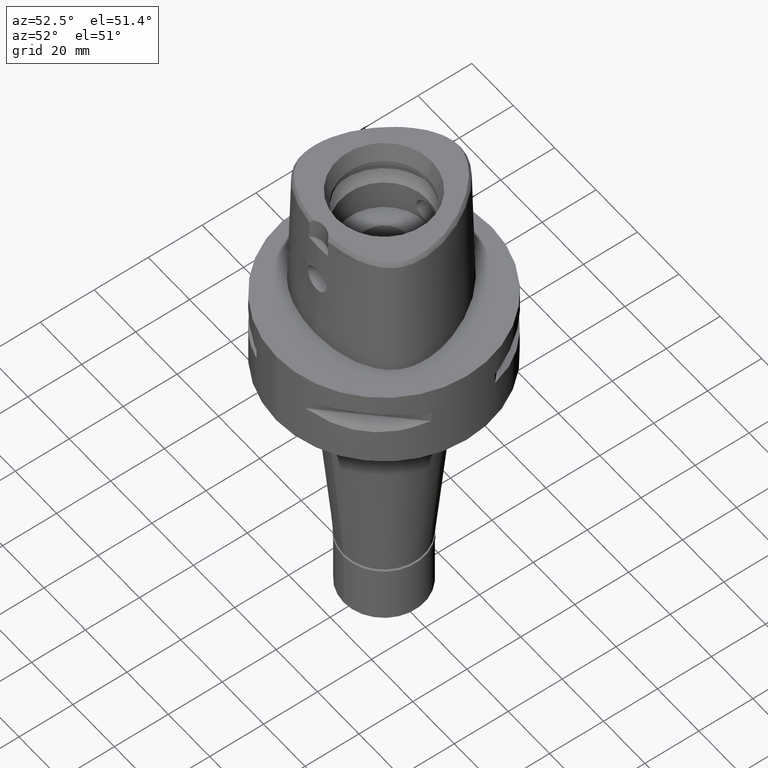
[diagram: clean part render]
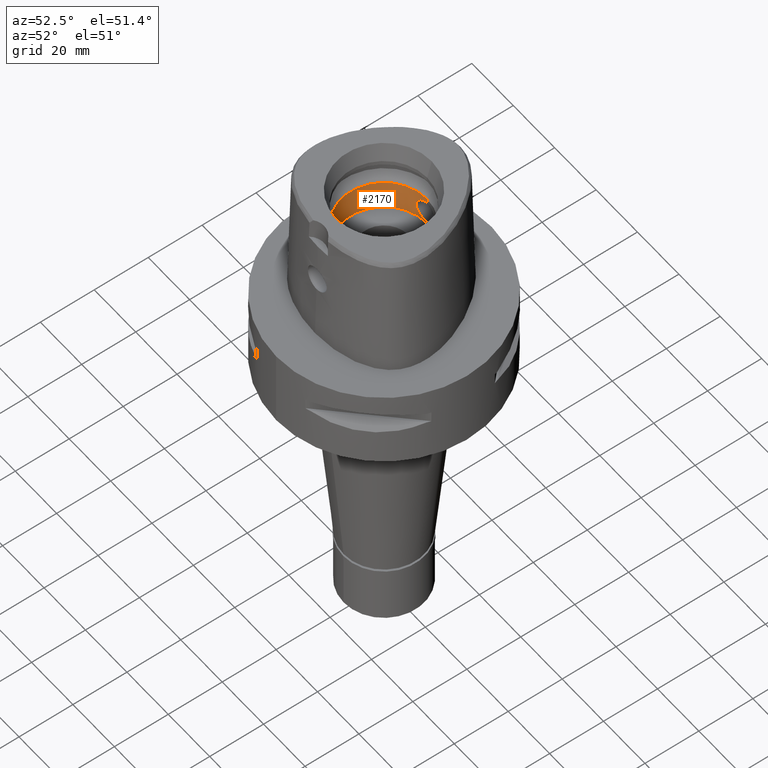
[diagram: same view with one face highlighted and labeled with its STEP entity id]
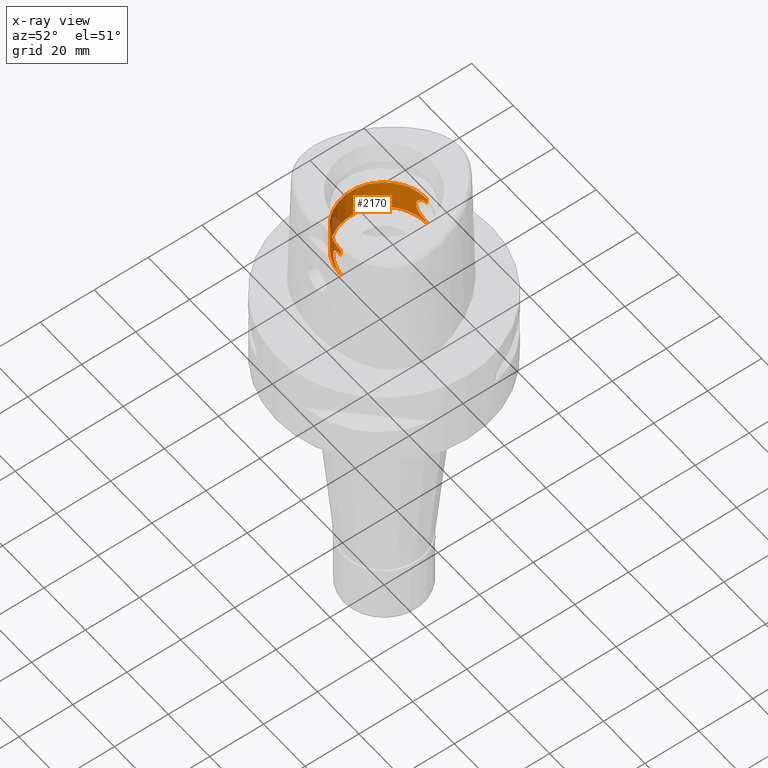
[diagram: x-ray of the same camera — body ghosted, the highlighted face saturated]
A machine part, auxiliary view. The second image highlights one B-rep face of the part: STEP entity #2170.
The next image is the same camera in x-ray: the body ghosted, the highlighted face saturated — about 5% of this face is hidden behind the body in this view.
In plain terms, the highlighted cylindrical surface (partial cylindrical patch) has radius 16 mm, axis along (0, 0, -1).
Its self-contained STEP definition (entity closure, byte-faithful):
#11 = CARTESIAN_POINT ( 'NONE',  ( -3.770759980238470810, -15.54928484612994488, 22.45365534022256071 ) ) ;
#41 = CARTESIAN_POINT ( 'NONE',  ( -3.164593148521985366, -15.68391194751405848, 21.73075049432587136 ) ) ;
#64 = CARTESIAN_POINT ( 'NONE',  ( -2.857373536110557222, -15.74233262073191497, 21.45808145749665385 ) ) ;
#76 = CARTESIAN_POINT ( 'NONE',  ( 0.0000000000000000000, -16.00000000000000000, 20.00000000000000000 ) ) ;
#116 = CARTESIAN_POINT ( 'NONE',  ( -2.615052671175415178, -15.78485159899936008, 28.72363278275448550 ) ) ;
#130 = CARTESIAN_POINT ( 'NONE',  ( -1.590909606422051592, 15.92067517995416104, 29.26310650829697835 ) ) ;
#139 = CARTESIAN_POINT ( 'NONE',  ( 0.0000000000000000000, -16.00000000000000000, 29.55000000000000071 ) ) ;
#161 = DIRECTION ( 'NONE',  ( 0.0000000000000000000, 0.0000000000000000000, -1.000000000000000000 ) ) ;
#181 = CARTESIAN_POINT ( 'NONE',  ( -1.140760103993205377, 15.95958583846035239, 29.40724264926300435 ) ) ;
#211 = CARTESIAN_POINT ( 'NONE',  ( -4.237594150193246811, 15.42874913209464438, 23.34290828511583982 ) ) ;
#232 = CARTESIAN_POINT ( 'NONE',  ( -4.442109092198020193, 15.37148696654308822, 24.00412671213637594 ) ) ;
#260 = CARTESIAN_POINT ( 'NONE',  ( -4.411048559110542833, 15.38060253977330483, 26.15501743212412578 ) ) ;
#292 = CARTESIAN_POINT ( 'NONE',  ( -4.550014972005905989, 15.33941184350851117, 25.13790463108722761 ) ) ;
#320 = CARTESIAN_POINT ( 'NONE',  ( -3.999411189207473072, 15.49220518450356820, 22.82912099227587177 ) ) ;
#363 = CARTESIAN_POINT ( 'NONE',  ( -3.803028819097503455, -15.54144467798745843, 27.49789858710326484 ) ) ;
#388 = CARTESIAN_POINT ( 'NONE',  ( -4.550016605372620759, -15.33941127124155201, 24.86215099084507685 ) ) ;
#395 = CARTESIAN_POINT ( 'NONE',  ( -2.546616965873742089, 15.79604194540690898, 21.22942273861440654 ) ) ;
#409 = CARTESIAN_POINT ( 'NONE',  ( -3.674612787969601779, -15.57277381835500130, 27.68738267096848560 ) ) ;
#416 = CARTESIAN_POINT ( 'NONE',  ( 0.0000000000000000000, -16.00000000000000000, 31.50000000000000000 ) ) ;
#430 = CARTESIAN_POINT ( 'NONE',  ( -3.608924392689227378, -15.58793867772004837, 22.22802856644076996 ) ) ;
#458 = CARTESIAN_POINT ( 'NONE',  ( -3.181681398921526238, -15.68046225010586525, 21.74737865687080784 ) ) ;
#481 = CARTESIAN_POINT ( 'NONE',  ( -2.399876071806192002, -15.81960993098903145, 28.86909068666054168 ) ) ;
#554 = CARTESIAN_POINT ( 'NONE',  ( -2.064166413537847244, -15.86630894761454158, 29.05554201722887342 ) ) ;
#600 = CARTESIAN_POINT ( 'NONE',  ( -3.674613688661279021, 15.57277332895812272, 22.31261877386840808 ) ) ;
#615 = VERTEX_POINT ( 'NONE', #5034 ) ;
#628 = CARTESIAN_POINT ( 'NONE',  ( -3.468482967250269056, 15.62005502598315942, 27.94868988707264634 ) ) ;
#650 = CARTESIAN_POINT ( 'NONE',  ( -3.164567237336389116, 15.68391714219621136, 28.26927458741651122 ) ) ;
#677 = CARTESIAN_POINT ( 'NONE',  ( -4.199165905794377096, 15.43928770095531178, 26.75202829721409259 ) ) ;
#707 = CARTESIAN_POINT ( 'NONE',  ( -4.219636267341808633, 15.43366082681107621, 23.29786489254982129 ) ) ;
#709 = EDGE_CURVE ( 'NONE', #615, #2057, #4961, .T. ) ;
#771 = CARTESIAN_POINT ( 'NONE',  ( -4.308073645056373024, -15.40933917230561789, 26.46741814490357214 ) ) ;
#783 = CARTESIAN_POINT ( 'NONE',  ( -2.399895137346605090, 15.81960703099427867, 21.13092108888233511 ) ) ;
#798 = CARTESIAN_POINT ( 'NONE',  ( -3.772427912172387376, -15.54888009509346780, 22.45612611348230558 ) ) ;
#820 = CARTESIAN_POINT ( 'NONE',  ( -3.947477866793213330, -15.50564519408261432, 22.73221844233430033 ) ) ;
#843 = CARTESIAN_POINT ( 'NONE',  ( -4.226851849642681458, -15.43168791976794019, 26.68413704551003818 ) ) ;
#871 = CARTESIAN_POINT ( 'NONE',  ( -3.873233737772334706, -15.52414049617831360, 27.38816348663961620 ) ) ;
#886 = CARTESIAN_POINT ( 'NONE',  ( -2.523266824950815224, 15.79903481094641471, 28.78917115941111149 ) ) ;
#919 = CARTESIAN_POINT ( 'NONE',  ( -1.770103668368385508, -15.90163906099604318, 29.19157592990286432 ) ) ;
#938 = CARTESIAN_POINT ( 'NONE',  ( -2.655275166708880530, 15.77765331378871672, 28.69879656004965440 ) ) ;
#961 = DIRECTION ( 'NONE',  ( 0.0000000000000000000, 1.000000000000000000, 0.0000000000000000000 ) ) ;
#971 = LINE ( 'NONE', #2945, #5091 ) ;
#987 = CARTESIAN_POINT ( 'NONE',  ( -4.343082513322389815, 15.39956137087163768, 23.64137842677810042 ) ) ;
#1017 = CARTESIAN_POINT ( 'NONE',  ( -3.303417263783335667, 15.65543377176718742, 21.86954111154406633 ) ) ;
#1037 = CARTESIAN_POINT ( 'NONE',  ( -1.653600938212678617, -15.91425128924059429, 20.76104373296122318 ) ) ;
#1046 = CARTESIAN_POINT ( 'NONE',  ( -3.947487563896062923, 15.50564270218542084, 27.26776463166709163 ) ) ;
#1070 = CARTESIAN_POINT ( 'NONE',  ( -4.132994643244532362, 15.45714541230709571, 26.90319602464457205 ) ) ;
#1074 = ORIENTED_EDGE ( 'NONE', *, *, #4372, .T. ) ;
#1094 = ORIENTED_EDGE ( 'NONE', *, *, #709, .F. ) ;
#1096 = CARTESIAN_POINT ( 'NONE',  ( -3.768407434987185223, 15.54985593897530549, 27.54982731639834270 ) ) ;
#1122 = VECTOR ( 'NONE', #2552, 1000.000000000000000 ) ;
#1156 = VERTEX_POINT ( 'NONE', #4217 ) ;
#1157 = CARTESIAN_POINT ( 'NONE',  ( -2.264376687355035944, 15.83946225968417920, 21.05058049220882310 ) ) ;
#1171 = CARTESIAN_POINT ( 'NONE',  ( -3.866436344083077792, -15.52606591073303299, 22.59570682629106386 ) ) ;
#1181 = CARTESIAN_POINT ( 'NONE',  ( -1.159189432197057501, 15.96838986749791722, 20.55577659394891654 ) ) ;
#1197 = CARTESIAN_POINT ( 'NONE',  ( -2.925392688698539079, -15.73002027455387264, 21.51391389585731773 ) ) ;
#1206 = CARTESIAN_POINT ( 'NONE',  ( -1.747105877979794109, 15.90418178585306030, 20.79878388586040572 ) ) ;
#1222 = CARTESIAN_POINT ( 'NONE',  ( -4.411053383424297536, -15.38060143694088389, 23.84499821223618454 ) ) ;
#1228 = CARTESIAN_POINT ( 'NONE',  ( -0.5625435954014351703, 16.00000000000000000, 20.44999999999999929 ) ) ;
#1243 = CARTESIAN_POINT ( 'NONE',  ( -4.155129910881949939, -15.45121309823671041, 23.14539743473875077 ) ) ;
#1269 = CARTESIAN_POINT ( 'NONE',  ( -4.219630551734469215, -15.43366195176614752, 26.70214927481584510 ) ) ;
#1391 = EDGE_CURVE ( 'NONE', #3978, #1527, #2410, .T. ) ;
#1405 = CARTESIAN_POINT ( 'NONE',  ( -3.536513010712533323, 15.60452899826052331, 22.13623471127148434 ) ) ;
#1431 = CARTESIAN_POINT ( 'NONE',  ( -3.484925694549966924, 15.61614551242483984, 22.07330582761800031 ) ) ;
#1451 = CARTESIAN_POINT ( 'NONE',  ( -1.912209224076176994, -15.88647844645581308, 20.86590070626024485 ) ) ;
#1461 = CARTESIAN_POINT ( 'NONE',  ( -4.549969975828982882, 15.33940606239298887, 24.72271143177623642 ) ) ;
#1483 = CARTESIAN_POINT ( 'NONE',  ( -3.866446053865151278, 15.52606363698486547, 27.40427778759385902 ) ) ;
#1487 = VERTEX_POINT ( 'NONE', #416 ) ;
#1512 = CARTESIAN_POINT ( 'NONE',  ( -4.196352190463255916, 15.44005272207899893, 26.75875030209602201 ) ) ;
#1527 = VERTEX_POINT ( 'NONE', #4370 ) ;
#1534 = CARTESIAN_POINT ( 'NONE',  ( -0.9962093679006770452, -15.96920684558385339, 20.55797680755367551 ) ) ;
#1561 = CARTESIAN_POINT ( 'NONE',  ( -3.903695300135948898, -15.51651288045087718, 27.33777033983094640 ) ) ;
#1569 = CARTESIAN_POINT ( 'NONE',  ( -1.850773136603759417, 15.89251031774791656, 20.84315916015391323 ) ) ;
#1583 = CARTESIAN_POINT ( 'NONE',  ( -4.237588040307278092, -15.42875037416565220, 26.65710732717910503 ) ) ;
#1604 = CARTESIAN_POINT ( 'NONE',  ( -3.484919793654390752, -15.61614698945674995, 27.92670124698731016 ) ) ;
#1627 = CARTESIAN_POINT ( 'NONE',  ( -4.189652323895267649, -15.44187290045058880, 23.22534855782602747 ) ) ;
#1651 = CARTESIAN_POINT ( 'NONE',  ( -3.762790664216165926, -15.55121841547053663, 22.44188264554308176 ) ) ;
#1667 = CARTESIAN_POINT ( 'NONE',  ( -1.653564068228525974, 15.91425522200126252, 29.23897064560675929 ) ) ;
#1676 = CARTESIAN_POINT ( 'NONE',  ( -2.541134032803606502, -15.79692595976012193, 28.77427459015486377 ) ) ;
#1712 = ORIENTED_EDGE ( 'NONE', *, *, #3833, .T. ) ;
#1714 = CARTESIAN_POINT ( 'NONE',  ( -1.357181538775629193, 15.94226548351479167, 29.34352548247307269 ) ) ;
#1760 = CARTESIAN_POINT ( 'NONE',  ( -1.707171946568374787, 15.90858513618628400, 29.21759257412913868 ) ) ;
#1789 = CARTESIAN_POINT ( 'NONE',  ( -3.903691630146975733, 15.51651370494703031, 22.66222352453099376 ) ) ;
#1796 = CARTESIAN_POINT ( 'NONE',  ( 0.0000000000000000000, 16.00000000000000000, 29.55000000000000071 ) ) ;
#1805 = CARTESIAN_POINT ( 'NONE',  ( -1.140784955815653756, -15.95958398482881080, 20.59276365346901372 ) ) ;
#1814 = CARTESIAN_POINT ( 'NONE',  ( -2.785150339257688401, 15.75567514882851583, 21.40122932039081149 ) ) ;
#1832 = CARTESIAN_POINT ( 'NONE',  ( -1.698281069872325855, -15.90953571157761814, 20.77881952702060531 ) ) ;
#1841 = CARTESIAN_POINT ( 'NONE',  ( -4.226857725782997122, 15.43168674739930601, 23.31587770079802624 ) ) ;
#1866 = CARTESIAN_POINT ( 'NONE',  ( -3.138927033459067761, 15.68906635997180032, 28.29402792154699853 ) ) ;
#1893 = CARTESIAN_POINT ( 'NONE',  ( -3.962675516144175791, 15.50163073709197370, 22.76265078186375135 ) ) ;
#1923 = CARTESIAN_POINT ( 'NONE',  ( 0.0000000000000000000, -16.00000000000000000, 29.55000000000000071 ) ) ;
#1944 = CARTESIAN_POINT ( 'NONE',  ( -4.343074729150051994, -15.39956319107818672, 26.35864634386871685 ) ) ;
#1969 = CARTESIAN_POINT ( 'NONE',  ( -3.189318713566251073, -15.67891343094984435, 21.75486172334241530 ) ) ;
#1975 = CARTESIAN_POINT ( 'NONE',  ( -1.997963240203906921, 15.87476478322290241, 20.91149385244035841 ) ) ;
#1990 = CARTESIAN_POINT ( 'NONE',  ( -3.536508346899525979, -15.60453024766170316, 27.86377109817507147 ) ) ;
#1999 = CARTESIAN_POINT ( 'NONE',  ( -1.770123691009649392, 15.90163684328704541, 20.80843252579381897 ) ) ;
#2014 = CARTESIAN_POINT ( 'NONE',  ( -3.649466559780250918, -15.57841005552143798, 22.28201108966871757 ) ) ;
#2042 = CARTESIAN_POINT ( 'NONE',  ( -4.442101176662089479, -15.37148904683071216, 25.99590811214460473 ) ) ;
#2057 = VERTEX_POINT ( 'NONE', #1923 ) ;
#2063 = CARTESIAN_POINT ( 'NONE',  ( -2.546597221813843515, -15.79604512245208525, 28.77059059623441328 ) ) ;
#2078 = CARTESIAN_POINT ( 'NONE',  ( -3.027770850642460765, 15.71074619974455544, 28.39663927633062457 ) ) ;
#2087 = CARTESIAN_POINT ( 'NONE',  ( -2.962123274058686917, -15.72368784967138566, 28.45704749765089403 ) ) ;
#2106 = CARTESIAN_POINT ( 'NONE',  ( -0.9961878768771389447, 15.96920825787455023, 29.44202789831593847 ) ) ;
#2113 = CARTESIAN_POINT ( 'NONE',  ( 0.0000000000000000000, 0.0000000000000000000, 50.39999999999999858 ) ) ;
#2160 = DIRECTION ( 'NONE',  ( 0.0000000000000000000, -1.000000000000000000, 0.0000000000000000000 ) ) ;
#2167 = CARTESIAN_POINT ( 'NONE',  ( -3.303408539596639937, -15.65543566466796577, 28.13046817108088149 ) ) ;
#2170 = ADVANCED_FACE ( 'NONE', ( #4163 ), #2970, .F. ) ;
#2187 = CARTESIAN_POINT ( 'NONE',  ( -3.189292576270065016, 15.67891872885192761, 28.24516396761776704 ) ) ;
#2197 = DIRECTION ( 'NONE',  ( 0.0000000000000000000, 0.0000000000000000000, 1.000000000000000000 ) ) ;
#2211 = CARTESIAN_POINT ( 'NONE',  ( -2.962140787422690824, 15.72368462031088399, 21.54296756997928597 ) ) ;
#2221 = ORIENTED_EDGE ( 'NONE', *, *, #2242, .F. ) ;
#2232 = CARTESIAN_POINT ( 'NONE',  ( -3.726288901112015939, 15.56005692804316354, 27.61121130299216375 ) ) ;
#2242 = EDGE_CURVE ( 'NONE', #2057, #1487, #971, .T. ) ;
#2259 = CARTESIAN_POINT ( 'NONE',  ( -4.308081053701197760, 15.40933751179871791, 23.53260340130821859 ) ) ;
#2291 = CARTESIAN_POINT ( 'NONE',  ( -4.215499682017137317, 15.43479048220081751, 23.28765271728413566 ) ) ;
#2361 = CARTESIAN_POINT ( 'NONE',  ( -4.261970450590708559, -15.42206061785877580, 26.59396347173989383 ) ) ;
#2371 = CARTESIAN_POINT ( 'NONE',  ( 0.0000000000000000000, 16.00000000000000000, 20.44999999999999929 ) ) ;
#2385 = CARTESIAN_POINT ( 'NONE',  ( -3.835940430641727072, -15.53336519271273453, 27.44719556071899902 ) ) ;
#2390 = VERTEX_POINT ( 'NONE', #3330 ) ;
#2405 = CARTESIAN_POINT ( 'NONE',  ( -3.027798496737373224, -15.71074096794787955, 21.60338537065186415 ) ) ;
#2410 = B_SPLINE_CURVE_WITH_KNOTS ( 'NONE', 3,
 ( #4452, #3714, #3739, #2106, #181, #1714, #3692, #130, #1667, #3253, #4840, #1760, #4943, #2865, #3303, #886, #938, #2476, #4053, #2078, #4231, #1866, #650, #3816, #2187, #2624, #628, #5043, #3768, #3457, #2232, #5071, #3846, #1096, #4260, #2986, #3014, #1483, #1046, #3066, #4966, #1070, #4207, #5020, #2648, #1512, #677, #4610, #260, #4989, #2678, #4154, #292, #1461, #3096, #232, #3790, #987, #2259, #4660, #211, #1841, #707, #2291, #3432, #3873, #320, #1893, #1789, #3404, #4183, #3039, #3481, #3378, #2573, #4633, #600, #1405, #1431, #4580, #1017, #2600, #2211, #1814, #4285, #2706, #4718, #3153, #3587, #395, #3511, #3127, #783, #1157, #5107, #1975, #4311, #1569, #4744, #1999, #3930, #1206, #1181, #1228, #2371 ),
 .UNSPECIFIED., .F., .F.,
 ( 4, 2, 2, 1, 1, 1, 1, 2, 2, 2, 2, 2, 1, 1, 2, 2, 2, 2, 1, 1, 1, 1, 2, 2, 2, 2, 1, 1, 2, 2, 2, 2, 2, 2, 2, 1, 1, 1, 2, 2, 2, 2, 1, 1, 1, 2, 2, 2, 2, 2, 2, 2, 1, 1, 1, 2, 2, 2, 2, 1, 1, 2, 2, 4 ),
 ( 0.0000000000000000000, 0.06249999999996705413, 0.09374999999995060895, 0.1093749999999422962, 0.1171874999999382438, 0.1210937499999362593, 0.1230468749999353989, 0.1240234374999348438, 0.1249999999999342748, 0.1874999999998833988, 0.2187499999998581690, 0.2343749999998457345, 0.2421874999998394618, 0.2460937499998365752, 0.2480468749998349098, 0.2499999999998332445, 0.2812499999998110956, 0.2968749999997997713, 0.3046874999997941091, 0.3085937499997913336, 0.3105468749997898903, 0.3115234374997891686, 0.3120117187497892242, 0.3124999999997893352, 0.3437499999997984945, 0.3593749999998027689, 0.3671874999998046007, 0.3710937499998054889, 0.3730468749998062661, 0.3749999999998069877, 0.4374999999998204214, 0.4687499999998268607, 0.4999999999998332445, 0.5624999999998460121, 0.5937499999998527844, 0.6093749999998557820, 0.6171874999998573363, 0.6210937499998576694, 0.6230468749998582245, 0.6249999999998586686, 0.6562499999998689937, 0.6718749999998741007, 0.6796874999998766542, 0.6835937499998778755, 0.6855468749998785416, 0.6865234374998790967, 0.6874999999998797628, 0.7187499999998928635, 0.7343749999998995248, 0.7499999999999060751, 0.7812499999999187317, 0.7968749999999250599, 0.8046874999999279465, 0.8085937499999295008, 0.8105468749999302780, 0.8115234374999307221, 0.8124999999999311662, 0.8437499999999450440, 0.8593749999999519273, 0.8671874999999553690, 0.8710937499999568123, 0.8730468749999575895, 0.8749999999999582556, 1.000000000000000000 ),
 .UNSPECIFIED. ) ;
#2434 = CARTESIAN_POINT ( 'NONE',  ( -3.999413278196044530, -15.49220456275814328, 27.17087509493712005 ) ) ;
#2450 = LINE ( 'NONE', #76, #2527 ) ;
#2460 = CARTESIAN_POINT ( 'NONE',  ( -2.264357884891243788, -15.83946496217991751, 28.94943027717637207 ) ) ;
#2476 = CARTESIAN_POINT ( 'NONE',  ( -2.857343863915064119, 15.74233786930796875, 28.54194248883869989 ) ) ;
#2485 = CARTESIAN_POINT ( 'NONE',  ( -3.094062483645028561, -15.69862711312405068, 28.34195050020527518 ) ) ;
#2519 = VECTOR ( 'NONE', #3657, 1000.000000000000000 ) ;
#2527 = VECTOR ( 'NONE', #4423, 1000.000000000000000 ) ;
#2552 = DIRECTION ( 'NONE',  ( 0.0000000000000000000, 0.0000000000000000000, 1.000000000000000000 ) ) ;
#2573 = CARTESIAN_POINT ( 'NONE',  ( -3.799104005360694369, 15.54240417563912935, 22.49613942991346605 ) ) ;
#2600 = CARTESIAN_POINT ( 'NONE',  ( -3.094077004170888046, 15.69862427604555144, 21.65806322977843479 ) ) ;
#2611 = CIRCLE ( 'NONE', #4181, 16.00000000000000000 ) ;
#2617 = CARTESIAN_POINT ( 'NONE',  ( -1.684884112672153433, -15.91096222550595840, 20.77343785575047619 ) ) ;
#2624 = CARTESIAN_POINT ( 'NONE',  ( -3.349826277480681291, 15.64617109901425174, 28.08647051457720067 ) ) ;
#2648 = CARTESIAN_POINT ( 'NONE',  ( -4.189656940208129399, 15.44187122868366657, 26.77464054244640579 ) ) ;
#2678 = CARTESIAN_POINT ( 'NONE',  ( -4.516441512071670772, 15.34971197744748928, 25.57024841028623641 ) ) ;
#2697 = CARTESIAN_POINT ( 'NONE',  ( -0.2782055712927915536, -16.00000000000000000, 20.45000000000000284 ) ) ;
#2706 = CARTESIAN_POINT ( 'NONE',  ( -2.652250871545867472, 15.77860059733965059, 21.30282779764083756 ) ) ;
#2714 = ORIENTED_EDGE ( 'NONE', *, *, #3110, .T. ) ;
#2721 = CARTESIAN_POINT ( 'NONE',  ( -1.357211456808673944, -15.94226283546972667, 20.65648383289448375 ) ) ;
#2746 = CARTESIAN_POINT ( 'NONE',  ( -3.751168735370768115, -15.55403637237609615, 22.42483334714804144 ) ) ;
#2773 = CARTESIAN_POINT ( 'NONE',  ( -3.468490070139379267, -15.62005320470794345, 22.05131889892997066 ) ) ;
#2797 = CARTESIAN_POINT ( 'NONE',  ( -3.772324227314893808, -15.54890525390715261, 22.45597329437009293 ) ) ;
#2820 = CARTESIAN_POINT ( 'NONE',  ( -4.524610823710142782, -15.34742665473420153, 25.56283231971658410 ) ) ;
#2846 = CARTESIAN_POINT ( 'NONE',  ( -4.215493976533938536, -15.43479160256175398, 26.71236132617784165 ) ) ;
#2862 = CARTESIAN_POINT ( 'NONE',  ( 0.0000000000000000000, 0.0000000000000000000, 31.50000000000000000 ) ) ;
#2865 = CARTESIAN_POINT ( 'NONE',  ( -1.912171411920562836, 15.88648310426963839, 29.13411677183932724 ) ) ;
#2893 = CARTESIAN_POINT ( 'NONE',  ( -1.997944188277485766, -15.87476718253413210, 29.08851545926303217 ) ) ;
#2926 = EDGE_LOOP ( 'NONE', ( #4954, #3860, #1712, #4651, #1074, #2714, #2221, #1094 ) ) ;
#2945 = CARTESIAN_POINT ( 'NONE',  ( 0.0000000000000000000, -16.00000000000000000, 29.55000000000000071 ) ) ;
#2947 = CARTESIAN_POINT ( 'NONE',  ( -3.369130814347397695, -15.64144300376580787, 28.05928156813589069 ) ) ;
#2970 = CYLINDRICAL_SURFACE ( 'NONE', #4834, 16.00000000000000000 ) ;
#2972 = CARTESIAN_POINT ( 'NONE',  ( -2.652230358308052871, -15.77860401608883301, 28.69718691725640980 ) ) ;
#2986 = CARTESIAN_POINT ( 'NONE',  ( -3.772332481373883883, 15.54890347445157950, 27.54401446636360262 ) ) ;
#3014 = CARTESIAN_POINT ( 'NONE',  ( -3.772436195961556660, 15.54887830827934181, 27.54386160211427992 ) ) ;
#3030 = CARTESIAN_POINT ( 'NONE',  ( -2.143403219931632187, -15.85668795787808349, 20.97543837626849239 ) ) ;
#3039 = CARTESIAN_POINT ( 'NONE',  ( -3.816843789853405333, 15.53805983925459522, 22.52323163771983516 ) ) ;
#3066 = CARTESIAN_POINT ( 'NONE',  ( -4.053986218455703394, 15.47807541231430939, 27.06722624874729632 ) ) ;
#3096 = CARTESIAN_POINT ( 'NONE',  ( -4.524616866566812945, 15.34742484315163402, 24.43721284604779242 ) ) ;
#3110 = EDGE_CURVE ( 'NONE', #2390, #1487, #5100, .T. ) ;
#3118 = CARTESIAN_POINT ( 'NONE',  ( -1.465313310844599481, -15.93288054623356231, 20.69122707573505338 ) ) ;
#3127 = CARTESIAN_POINT ( 'NONE',  ( -2.539987065377296904, 15.79711102339729756, 21.22495141109085637 ) ) ;
#3144 = CARTESIAN_POINT ( 'NONE',  ( -3.799108428659918157, -15.54240332098918032, 27.50385385879915390 ) ) ;
#3153 = CARTESIAN_POINT ( 'NONE',  ( -2.574461866630644913, 15.79152464315161986, 21.24833724970529403 ) ) ;
#3168 = CARTESIAN_POINT ( 'NONE',  ( -3.349840948172829513, -15.64616776988927249, 21.91354633876354185 ) ) ;
#3193 = CARTESIAN_POINT ( 'NONE',  ( -3.138953278057600382, -15.68906115652199773, 21.70599708910013348 ) ) ;
#3214 = CARTESIAN_POINT ( 'NONE',  ( -4.495814062753821005, -15.35588899406192454, 24.28418844418792588 ) ) ;
#3238 = CARTESIAN_POINT ( 'NONE',  ( -4.161424560288987884, -15.44954562372141105, 26.84476683902795457 ) ) ;
#3253 = CARTESIAN_POINT ( 'NONE',  ( -1.684846511908498545, 15.91096630911555110, 29.22657713225770948 ) ) ;
#3303 = CARTESIAN_POINT ( 'NONE',  ( -2.143366757437013881, 15.85669290493108008, 29.02458111161339716 ) ) ;
#3310 = CARTESIAN_POINT ( 'NONE',  ( -1.850753553290755526, -15.89251259051184562, 29.15684956051372012 ) ) ;
#3330 = CARTESIAN_POINT ( 'NONE',  ( 0.0000000000000000000, 16.00000000000000000, 31.50000000000000000 ) ) ;
#3332 = DIRECTION ( 'NONE',  ( 0.0000000000000000000, -1.000000000000000000, 0.0000000000000000000 ) ) ;
#3366 = CARTESIAN_POINT ( 'NONE',  ( -2.539967469034787761, -15.79711416914411970, 28.77506177390170805 ) ) ;
#3378 = CARTESIAN_POINT ( 'NONE',  ( -3.803024487767081130, 15.54144551466437463, 22.50209481850186322 ) ) ;
#3404 = CARTESIAN_POINT ( 'NONE',  ( -3.873229736101929888, 15.52414134861769313, 22.61183001807234660 ) ) ;
#3422 = CARTESIAN_POINT ( 'NONE',  ( -1.707210068303430361, -15.90858094336208062, 20.78242285661154298 ) ) ;
#3432 = CARTESIAN_POINT ( 'NONE',  ( -4.161427588471145356, 15.44954525539627710, 23.15523942802261104 ) ) ;
#3457 = CARTESIAN_POINT ( 'NONE',  ( -3.702056098178802213, 15.56588042129633820, 27.64540605693719755 ) ) ;
#3481 = CARTESIAN_POINT ( 'NONE',  ( -3.808565089496177336, 15.54008891750367027, 22.51055076183861559 ) ) ;
#3511 = CARTESIAN_POINT ( 'NONE',  ( -2.541153697273674350, 15.79692280174022834, 21.22573864951214162 ) ) ;
#3531 = CARTESIAN_POINT ( 'NONE',  ( -4.179508729505275966, -15.44462469562382090, 23.20146367011464150 ) ) ;
#3554 = CARTESIAN_POINT ( 'NONE',  ( -4.086969872097570011, -15.46939934136299932, 22.99890610501025989 ) ) ;
#3576 = CARTESIAN_POINT ( 'NONE',  ( -2.655307059666326186, -15.77764808458817924, 21.30122637009752395 ) ) ;
#3587 = CARTESIAN_POINT ( 'NONE',  ( -2.554863205078647059, 15.79470972343062130, 21.23499643944213844 ) ) ;
#3603 = CARTESIAN_POINT ( 'NONE',  ( -4.132988131132479204, -15.45714752426266259, 23.09678982087692845 ) ) ;
#3626 = CARTESIAN_POINT ( 'NONE',  ( -4.053977838880549633, -15.47807783949446403, 22.93275730563798120 ) ) ;
#3657 = DIRECTION ( 'NONE',  ( 0.0000000000000000000, 0.0000000000000000000, 1.000000000000000000 ) ) ;
#3674 = AXIS2_PLACEMENT_3D ( 'NONE', #2862, #4449, #961 ) ;
#3692 = CARTESIAN_POINT ( 'NONE',  ( -1.465280853777187309, 15.93288362458592644, 29.30878390010149204 ) ) ;
#3700 = CARTESIAN_POINT ( 'NONE',  ( -1.899645079833027772, -15.88671989457560230, 29.13462918297305038 ) ) ;
#3714 = CARTESIAN_POINT ( 'NONE',  ( -0.2782001068910611719, 16.00000000000001066, 29.55000000000000426 ) ) ;
#3718 = LINE ( 'NONE', #1796, #1122 ) ;
#3739 = CARTESIAN_POINT ( 'NONE',  ( -0.5640635805869049779, 15.99230206446863889, 29.52441607490641928 ) ) ;
#3752 = CARTESIAN_POINT ( 'NONE',  ( -2.554843346253054648, -15.79471292831886586, 28.76501703596869675 ) ) ;
#3768 = CARTESIAN_POINT ( 'NONE',  ( -3.649469553235155317, 15.57840963761018216, 27.71798495591515987 ) ) ;
#3775 = CARTESIAN_POINT ( 'NONE',  ( 0.0000000000000000000, 0.0000000000000000000, 20.00000000000000000 ) ) ;
#3790 = CARTESIAN_POINT ( 'NONE',  ( -4.407205412713338433, 15.38151333304915624, 23.85898569809447167 ) ) ;
#3808 = VERTEX_POINT ( 'NONE', #4545 ) ;
#3816 = CARTESIAN_POINT ( 'NONE',  ( -3.181655711113680063, 15.68046743868570303, 28.25264647072010504 ) ) ;
#3833 = EDGE_CURVE ( 'NONE', #1156, #1527, #4496, .T. ) ;
#3846 = CARTESIAN_POINT ( 'NONE',  ( -3.762798590163527468, 15.55121672924266996, 27.55810569687010059 ) ) ;
#3860 = ORIENTED_EDGE ( 'NONE', *, *, #4382, .T. ) ;
#3873 = CARTESIAN_POINT ( 'NONE',  ( -4.102398033238916497, 15.46541780468326266, 23.02646193778318917 ) ) ;
#3890 = CARTESIAN_POINT ( 'NONE',  ( -0.5640752438483854769, -15.99230171139595669, 20.47558493206315688 ) ) ;
#3919 = CARTESIAN_POINT ( 'NONE',  ( -3.816848088718857390, -15.53805899385970513, 27.47676173745749395 ) ) ;
#3930 = CARTESIAN_POINT ( 'NONE',  ( -1.754072789399700127, 15.90341470188477402, 20.80169028991615932 ) ) ;
#3950 = CARTESIAN_POINT ( 'NONE',  ( -3.744577712622358945, -15.55572792692179718, 27.58647494997489247 ) ) ;
#3974 = CARTESIAN_POINT ( 'NONE',  ( -3.808569409122265270, -15.54008807711122486, 27.48944262963354745 ) ) ;
#3978 = VERTEX_POINT ( 'NONE', #4933 ) ;
#3995 = CARTESIAN_POINT ( 'NONE',  ( -3.079094391366401950, -15.70089861781014484, 21.64955138945110846 ) ) ;
#4018 = CARTESIAN_POINT ( 'NONE',  ( -4.199161613558629824, -15.43928928869310901, 23.24796141289020568 ) ) ;
#4053 = CARTESIAN_POINT ( 'NONE',  ( -2.925363802413545766, 15.73002552135701748, 28.48611035590906582 ) ) ;
#4062 = CARTESIAN_POINT ( 'NONE',  ( -1.794218988294321804, -15.89894933062296900, 29.18136505996816155 ) ) ;
#4111 = CARTESIAN_POINT ( 'NONE',  ( -1.747085553308284300, -15.90418400689213385, 29.20122456593889737 ) ) ;
#4130 = DIRECTION ( 'NONE',  ( 0.0000000000000000000, 0.0000000000000000000, -1.000000000000000000 ) ) ;
#4135 = CARTESIAN_POINT ( 'NONE',  ( -0.5625373479507834729, -16.00000000000000355, 29.54999999999999716 ) ) ;
#4154 = CARTESIAN_POINT ( 'NONE',  ( -4.543544055679970661, 15.34147267175649709, 25.28219602317085091 ) ) ;
#4163 = FACE_OUTER_BOUND ( 'NONE', #2926, .T. ) ;
#4181 = AXIS2_PLACEMENT_3D ( 'NONE', #3775, #4130, #2160 ) ;
#4183 = CARTESIAN_POINT ( 'NONE',  ( -3.835936202304143450, 15.53336604578387714, 22.55279781099049075 ) ) ;
#4207 = CARTESIAN_POINT ( 'NONE',  ( -4.155135760224653474, 15.45121112494183535, 26.85458942879168021 ) ) ;
#4217 = CARTESIAN_POINT ( 'NONE',  ( 0.0000000000000000000, 16.00000000000000000, 20.00000000000000000 ) ) ;
#4231 = CARTESIAN_POINT ( 'NONE',  ( -3.079067380662787290, 15.70090383901679942, 28.35047343940291142 ) ) ;
#4260 = CARTESIAN_POINT ( 'NONE',  ( -3.770768181524768892, 15.54928308177700380, 27.54633251487235057 ) ) ;
#4285 = CARTESIAN_POINT ( 'NONE',  ( -2.729594615933962576, 15.76540532702100705, 21.35913730680258382 ) ) ;
#4311 = CARTESIAN_POINT ( 'NONE',  ( -1.899664462564046419, 15.88671758217960139, 20.86537972280028441 ) ) ;
#4330 = CARTESIAN_POINT ( 'NONE',  ( -4.516446335681807867, -15.34971054047807471, 24.42978865866342275 ) ) ;
#4362 = CARTESIAN_POINT ( 'NONE',  ( -3.702050631659610236, -15.56588145241954635, 22.35458630975450589 ) ) ;
#4370 = CARTESIAN_POINT ( 'NONE',  ( 0.0000000000000000000, 16.00000000000000000, 20.44999999999999929 ) ) ;
#4372 = EDGE_CURVE ( 'NONE', #3978, #2390, #3718, .T. ) ;
#4382 = EDGE_CURVE ( 'NONE', #3808, #1156, #2611, .T. ) ;
#4385 = CARTESIAN_POINT ( 'NONE',  ( -2.523300014605302621, -15.79902962758852603, 21.21085096058503794 ) ) ;
#4407 = CARTESIAN_POINT ( 'NONE',  ( -3.768399313966183328, -15.54985768042155314, 22.45016068174246371 ) ) ;
#4423 = DIRECTION ( 'NONE',  ( 0.0000000000000000000, 0.0000000000000000000, 1.000000000000000000 ) ) ;
#4436 = CARTESIAN_POINT ( 'NONE',  ( -3.962678364237764761, -15.50163000501780175, 27.23734414294917983 ) ) ;
#4449 = DIRECTION ( 'NONE',  ( 0.0000000000000000000, 0.0000000000000000000, 1.000000000000000000 ) ) ;
#4452 = CARTESIAN_POINT ( 'NONE',  ( 0.0000000000000000000, 16.00000000000000000, 29.55000000000000071 ) ) ;
#4461 = CARTESIAN_POINT ( 'NONE',  ( -2.785130416956973942, -15.75567861085730748, 28.59878611249331826 ) ) ;
#4487 = CARTESIAN_POINT ( 'NONE',  ( -1.159175767110613986, -15.96839060021183698, 29.44422579482781188 ) ) ;
#4496 = LINE ( 'NONE', #4523, #2519 ) ;
#4516 = CARTESIAN_POINT ( 'NONE',  ( -2.729574231615206070, -15.76540880731342931, 28.64087797279083247 ) ) ;
#4523 = CARTESIAN_POINT ( 'NONE',  ( 0.0000000000000000000, 16.00000000000000000, 20.00000000000000000 ) ) ;
#4540 = CARTESIAN_POINT ( 'NONE',  ( -1.754052669307090362, -15.90341690957106380, 29.19831811636623442 ) ) ;
#4545 = CARTESIAN_POINT ( 'NONE',  ( 0.0000000000000000000, -16.00000000000000000, 20.00000000000000000 ) ) ;
#4563 = CARTESIAN_POINT ( 'NONE',  ( -2.574441772274493889, -15.79152790814320895, 28.75167653804916768 ) ) ;
#4580 = CARTESIAN_POINT ( 'NONE',  ( -3.369139138973671344, 15.64144112288047594, 21.94072764575870593 ) ) ;
#4598 = CARTESIAN_POINT ( 'NONE',  ( -1.590945010310114371, -15.92067154165059684, 20.73690668786465352 ) ) ;
#4610 = CARTESIAN_POINT ( 'NONE',  ( -4.323958105636553029, 15.40531264654294041, 26.45109749241865771 ) ) ;
#4633 = CARTESIAN_POINT ( 'NONE',  ( -3.744576044325127473, 15.55572804701056455, 22.41352282408128360 ) ) ;
#4651 = ORIENTED_EDGE ( 'NONE', *, *, #1391, .F. ) ;
#4660 = CARTESIAN_POINT ( 'NONE',  ( -4.261977057047800166, 15.42205922307470267, 23.40605414359049163 ) ) ;
#4681 = CARTESIAN_POINT ( 'NONE',  ( 0.0000000000000000000, -16.00000000000000000, 20.44999999999999929 ) ) ;
#4718 = CARTESIAN_POINT ( 'NONE',  ( -2.615073108240201893, 15.78484823325644548, 21.27638156580659157 ) ) ;
#4733 = CARTESIAN_POINT ( 'NONE',  ( -4.323960206976633636, -15.40531250836341215, 23.54890563551446547 ) ) ;
#4744 = CARTESIAN_POINT ( 'NONE',  ( -1.794238869419840565, 15.89894709740169176, 20.81864347152965777 ) ) ;
#4761 = CARTESIAN_POINT ( 'NONE',  ( -4.549966690610696141, -15.33940721083691372, 25.27733904935923803 ) ) ;
#4784 = CARTESIAN_POINT ( 'NONE',  ( -3.726282369192689625, -15.56005823341759964, 22.38877939520637739 ) ) ;
#4802 = CARTESIAN_POINT ( 'NONE',  ( -4.196347830805081003, -15.44005432721212401, 23.24123929449494241 ) ) ;
#4826 = CARTESIAN_POINT ( 'NONE',  ( -4.407197250832745716, -15.38151538190464684, 26.14104529051692793 ) ) ;
#4834 = AXIS2_PLACEMENT_3D ( 'NONE', #2113, #161, #3332 ) ;
#4840 = CARTESIAN_POINT ( 'NONE',  ( -1.698243156451421987, 15.90953986061253644, 29.22119572610240468 ) ) ;
#4853 = EDGE_CURVE ( 'NONE', #3808, #615, #2450, .T. ) ;
#4933 = CARTESIAN_POINT ( 'NONE',  ( 0.0000000000000000000, 16.00000000000000000, 29.55000000000000071 ) ) ;
#4943 = CARTESIAN_POINT ( 'NONE',  ( -1.713033589464119988, 15.90795511220731129, 29.21521373882661621 ) ) ;
#4954 = ORIENTED_EDGE ( 'NONE', *, *, #4853, .F. ) ;
#4961 = B_SPLINE_CURVE_WITH_KNOTS ( 'NONE', 3,
 ( #4681, #2697, #3890, #1534, #1805, #2721, #3118, #4598, #1037, #2617, #1832, #3422, #5008, #1451, #3030, #4385, #3576, #64, #1197, #2405, #3995, #3193, #41, #458, #1969, #3168, #2773, #430, #2014, #4362, #4784, #2746, #1651, #4407, #11, #2797, #798, #1171, #820, #3626, #3554, #3603, #1243, #3531, #1627, #4802, #4018, #4733, #1222, #3214, #4330, #5150, #388, #4761, #2820, #2042, #4826, #1944, #771, #2361, #1583, #843, #1269, #2846, #3238, #5125, #2434, #4436, #1561, #871, #2385, #3919, #3974, #363, #3144, #3950, #409, #1990, #1604, #2947, #2167, #2485, #2087, #4461, #4516, #2972, #116, #4563, #3752, #2063, #1676, #3366, #481, #2460, #554, #2893, #3700, #3310, #4062, #919, #4540, #4111, #4487, #4135, #139 ),
 .UNSPECIFIED., .F., .F.,
 ( 4, 2, 2, 1, 1, 1, 1, 2, 2, 2, 2, 2, 1, 1, 2, 2, 2, 2, 1, 1, 1, 1, 2, 2, 2, 2, 1, 1, 2, 2, 2, 2, 2, 2, 2, 1, 1, 1, 2, 2, 2, 2, 1, 1, 1, 2, 2, 2, 2, 2, 2, 2, 1, 1, 1, 2, 2, 2, 2, 1, 1, 2, 2, 4 ),
 ( 0.0000000000000000000, 0.06250000000000004163, 0.09375000000000000000, 0.1093750000000001249, 0.1171875000000000278, 0.1210937499999998473, 0.1230468749999998890, 0.1240234374999999861, 0.1250000000000000833, 0.1874999999999952816, 0.2187499999999928668, 0.2343749999999917566, 0.2421874999999911737, 0.2460937499999910905, 0.2480468749999912292, 0.2499999999999913680, 0.2812499999999942824, 0.2968749999999957812, 0.3046874999999961142, 0.3085937499999962252, 0.3105468749999967248, 0.3115234374999968914, 0.3120117187499970024, 0.3124999999999971134, 0.3437499999999761302, 0.3593749999999653610, 0.3671874999999599765, 0.3710937499999575895, 0.3730468749999567013, 0.3749999999999558131, 0.4374999999999330536, 0.4687499999999213407, 0.4999999999999095723, 0.5624999999998867573, 0.5937499999998750999, 0.6093749999998688827, 0.6171874999998661071, 0.6210937499998647748, 0.6230468749998637756, 0.6249999999998627764, 0.6562499999998554490, 0.6718749999998517852, 0.6796874999998502309, 0.6835937499998494538, 0.6855468749998491207, 0.6865234374998488986, 0.6874999999998486766, 0.7187499999998685496, 0.7343749999998782085, 0.7499999999998877565, 0.7812499999999070743, 0.7968749999999168443, 0.8046874999999219513, 0.8085937499999241718, 0.8105468749999252820, 0.8115234374999258371, 0.8124999999999263922, 0.8437499999999379385, 0.8593749999999434896, 0.8671874999999462652, 0.8710937499999478195, 0.8730468749999485967, 0.8749999999999493738, 1.000000000000000000 ),
 .UNSPECIFIED. ) ;
#4966 = CARTESIAN_POINT ( 'NONE',  ( -4.086977595750750147, 15.46939700107862414, 27.00107807170905971 ) ) ;
#4989 = CARTESIAN_POINT ( 'NONE',  ( -4.495808787952165098, 15.35589048042781890, 25.71584356322282616 ) ) ;
#5008 = CARTESIAN_POINT ( 'NONE',  ( -1.713071927413759576, -15.90795088191244311, 20.78480184165024269 ) ) ;
#5020 = CARTESIAN_POINT ( 'NONE',  ( -4.179513726172752186, 15.44462292696823269, 26.79852470944313581 ) ) ;
#5034 = CARTESIAN_POINT ( 'NONE',  ( 0.0000000000000000000, -16.00000000000000000, 20.44999999999999929 ) ) ;
#5043 = CARTESIAN_POINT ( 'NONE',  ( -3.608925282302509974, 15.58793875489599934, 27.77197038996003542 ) ) ;
#5071 = CARTESIAN_POINT ( 'NONE',  ( -3.751176239658187583, 15.55403480366257440, 27.57515572555782768 ) ) ;
#5091 = VECTOR ( 'NONE', #2197, 1000.000000000000000 ) ;
#5100 = CIRCLE ( 'NONE', #3674, 16.00000000000000000 ) ;
#5107 = CARTESIAN_POINT ( 'NONE',  ( -2.064185338870719644, 15.86630648015830936, 20.94446761269487212 ) ) ;
#5125 = CARTESIAN_POINT ( 'NONE',  ( -4.102397402724544229, -15.46541766006635932, 26.97353909022224272 ) ) ;
#5150 = CARTESIAN_POINT ( 'NONE',  ( -4.543547069556167273, -15.34147168806200234, 24.71785021068575716 ) ) ;